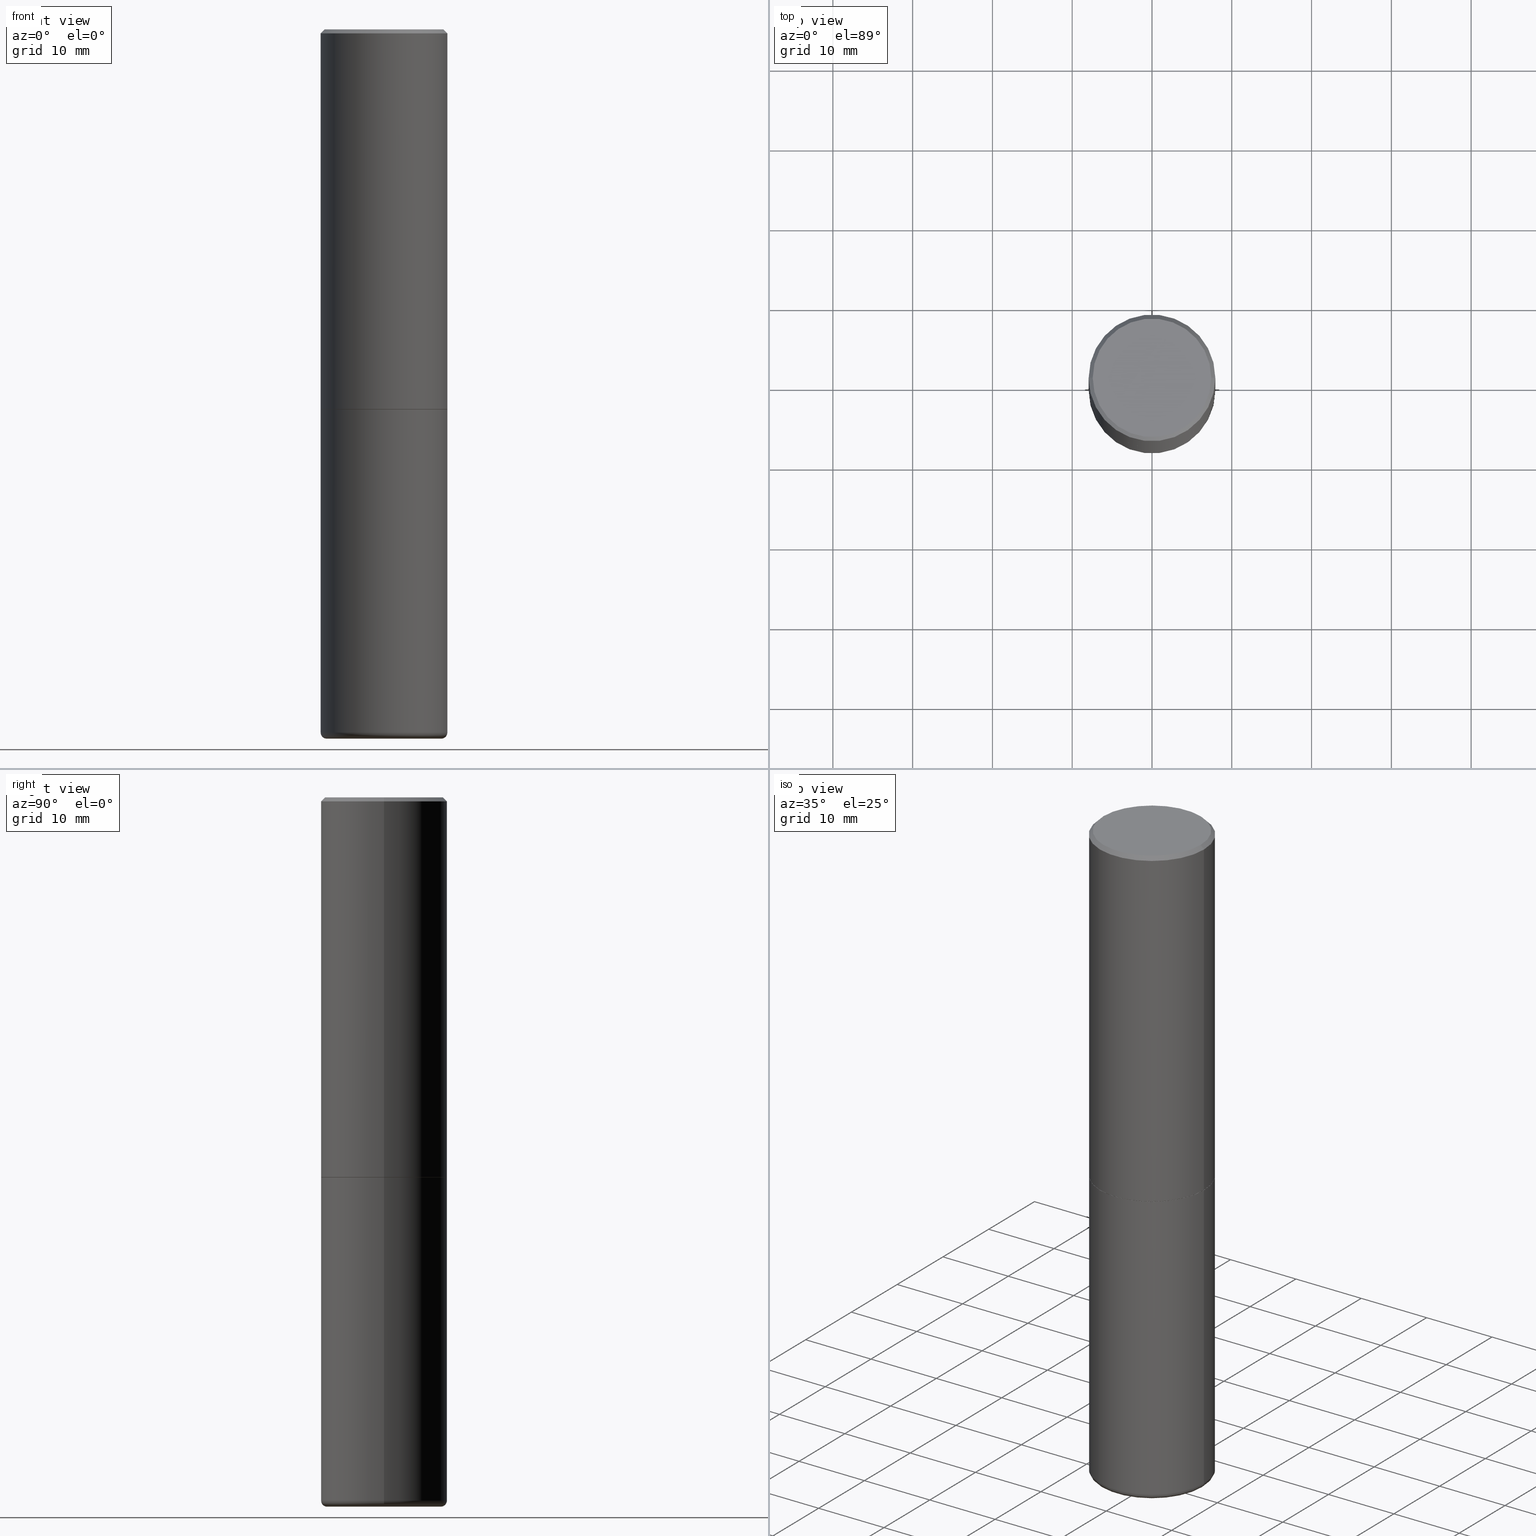
[diagram: canonical four-view strip — front | top / right | iso, engineering-drawing reading convention]
A machine part, canonical four-view strip (front | top / right | iso — engineering-drawing reading convention). The complete STEP part file that produces these views, byte-faithful:
ISO-10303-21;
HEADER;
FILE_DESCRIPTION (( 'STEP AP203' ),
    '1' );
FILE_NAME ('35118.STEP',
    '2022-07-29T12:17:37',
    ( '' ),
    ( '' ),
    'SwSTEP 2.0',
    'SolidWorks 2022',
    '' );
FILE_SCHEMA (( 'CONFIG_CONTROL_DESIGN' ));
ENDSEC;

DATA;
#1 = EDGE_LOOP ( 'NONE', ( #116, #70, #228, #4 ) ) ;
#2 = VERTEX_POINT ( 'NONE', #466 ) ;
#3 = CC_DESIGN_PERSON_AND_ORGANIZATION_ASSIGNMENT ( #87, #472, ( #120 ) ) ;
#4 = ORIENTED_EDGE ( 'NONE', *, *, #354, .F. ) ;
#5 = ORIENTED_EDGE ( 'NONE', *, *, #449, .T. ) ;
#6 = CONICAL_SURFACE ( 'NONE', #390, 0.2622382039350492078, 1.535889741755008808 ) ;
#7 = ORIENTED_EDGE ( 'NONE', *, *, #161, .F. ) ;
#8 = ORIENTED_EDGE ( 'NONE', *, *, #37, .T. ) ;
#9 = EDGE_CURVE ( 'NONE', #284, #77, #360, .T. ) ;
#10 = PERSON_AND_ORGANIZATION ( #435, #300 ) ;
#11 = CALENDAR_DATE ( 2022, 29, 7 ) ;
#12 = DIRECTION ( 'NONE',  ( -2.445468806185136597E-29, 3.491481338843145583E-15, 1.000000000000000000 ) ) ;
#13 = VERTEX_POINT ( 'NONE', #18 ) ;
#14 = LINE ( 'NONE', #90, #36 ) ;
#15 = DIRECTION ( 'NONE',  ( -2.445468806185136877E-29, 3.491481338843145188E-15, 1.000000000000000000 ) ) ;
#16 = ADVANCED_FACE ( 'NONE', ( #288 ), #46, .T. ) ;
#17 = DATE_AND_TIME ( #11, #190 ) ;
#18 = CARTESIAN_POINT ( 'NONE',  ( 0.3124999999999994449, -2.213735251080463362E-15, -0.02000000000000014960 ) ) ;
#19 = FACE_OUTER_BOUND ( 'NONE', #183, .T. ) ;
#20 = CARTESIAN_POINT ( 'NONE',  ( -0.2924999999999993716, 2.077431396611659850E-15, 4.268512490086005323E-18 ) ) ;
#21 = CARTESIAN_POINT ( 'NONE',  ( 4.585254011597131119E-29, -6.546527510330898707E-15, -1.875000000000000000 ) ) ;
#22 = FACE_OUTER_BOUND ( 'NONE', #1, .T. ) ;
#23 = MANIFOLD_SOLID_BREP ( 'Body-Move/Copy2[1]', #315 ) ;
#24 = VECTOR ( 'NONE', #153, 39.37007874015748143 ) ;
#25 = CARTESIAN_POINT ( 'NONE',  ( 2.182175836777002129E-15, 0.3124999999999931721, -1.875000000000000888 ) ) ;
#26 = SECURITY_CLASSIFICATION ( '', '', #242 ) ;
#27 = VECTOR ( 'NONE', #290, 39.37007874015748143 ) ;
#28 = DIRECTION ( 'NONE',  ( 2.445468806185136597E-29, -3.491481338843145583E-15, -1.000000000000000000 ) ) ;
#29 = ADVANCED_FACE ( 'NONE', ( #51 ), #476, .T. ) ;
#30 =( LENGTH_UNIT ( ) NAMED_UNIT ( * ) SI_UNIT ( $, .METRE. ) );
#31 = DIRECTION ( 'NONE',  ( -2.445468806185136597E-29, 3.491481338843145583E-15, 1.000000000000000000 ) ) ;
#32 = DIRECTION ( 'NONE',  ( 1.000000000000000000, -6.982962677686266711E-15, 4.876067333457700127E-29 ) ) ;
#33 = EDGE_LOOP ( 'NONE', ( #34, #380, #353, #107 ) ) ;
#34 = ORIENTED_EDGE ( 'NONE', *, *, #203, .T. ) ;
#35 = CLOSED_SHELL ( 'NONE', ( #95, #16, #485, #364, #463, #480, #259, #56 ) ) ;
#36 = VECTOR ( 'NONE', #412, 39.37007874015748143 ) ;
#37 = EDGE_CURVE ( 'NONE', #262, #223, #350, .T. ) ;
#38 = EDGE_LOOP ( 'NONE', ( #301, #488, #491, #69 ) ) ;
#39 = CARTESIAN_POINT ( 'NONE',  ( 0.3124999999999996114, -2.182175836776955586E-15, 1.523805242436227833E-29 ) ) ;
#40 = ORIENTED_EDGE ( 'NONE', *, *, #161, .T. ) ;
#41 = VERTEX_POINT ( 'NONE', #94 ) ;
#42 = AXIS2_PLACEMENT_3D ( 'NONE', #25, #333, #133 ) ;
#43 = EDGE_CURVE ( 'NONE', #262, #260, #89, .T. ) ;
#44 = EDGE_LOOP ( 'NONE', ( #306, #181, #111 ) ) ;
#45 = CARTESIAN_POINT ( 'NONE',  ( 0.2622382039350492078, -1.401865996506585776E-14, -3.499825462644184704 ) ) ;
#46 = CYLINDRICAL_SURFACE ( 'NONE', #437, 0.3124999999999996114 ) ;
#47 = DESIGN_CONTEXT ( 'detailed design', #314, 'design' ) ;
#48 = CALENDAR_DATE ( 2022, 29, 7 ) ;
#49 = DIRECTION ( 'NONE',  ( -2.445468806185136597E-29, 3.491481338843145583E-15, 1.000000000000000000 ) ) ;
#50 = CARTESIAN_POINT ( 'NONE',  ( 0.2622382039350492078, -1.401865996506585776E-14, -3.499825462644184704 ) ) ;
#51 = FACE_OUTER_BOUND ( 'NONE', #269, .T. ) ;
#52 = DIRECTION ( 'NONE',  ( -2.445468806185136877E-29, 3.491481338843145188E-15, 1.000000000000000000 ) ) ;
#53 = SHAPE_DEFINITION_REPRESENTATION ( #96, #134 ) ;
#54 = DIRECTION ( 'NONE',  ( -2.445468806185136597E-29, 3.491481338843145583E-15, 1.000000000000000000 ) ) ;
#55 = CARTESIAN_POINT ( 'NONE',  ( -1.043851414335219820E-46, 1.490343170380447200E-32, 4.268512490100411279E-18 ) ) ;
#56 = ADVANCED_FACE ( 'NONE', ( #317 ), #248, .F. ) ;
#57 = CONICAL_SURFACE ( 'NONE', #154, 0.3124999999999994449, 0.7853981633974468357 ) ;
#58 = CARTESIAN_POINT ( 'NONE',  ( 4.890937612370309067E-31, -6.982962677686343378E-17, -0.02000000000000014960 ) ) ;
#59 = DIRECTION ( 'NONE',  ( 0.7071067811865464625, -7.319954787623252890E-15, -0.7071067811865485719 ) ) ;
#60 = AXIS2_PLACEMENT_3D ( 'NONE', #93, #54, #209 ) ;
#61 = CARTESIAN_POINT ( 'NONE',  ( 8.536319468982178689E-29, -1.218760184262940823E-14, -3.490667902772638609 ) ) ;
#62 = EDGE_CURVE ( 'NONE', #406, #229, #159, .T. ) ;
#63 = DIRECTION ( 'NONE',  ( 1.000000000000000000, -6.982962677686269077E-15, 4.883557194083113462E-29 ) ) ;
#64 = LINE ( 'NONE', #218, #464 ) ;
#65 =( GEOMETRIC_REPRESENTATION_CONTEXT ( 3 ) GLOBAL_UNCERTAINTY_ASSIGNED_CONTEXT ( ( #434 ) ) GLOBAL_UNIT_ASSIGNED_CONTEXT ( ( #138, #273, #195 ) ) REPRESENTATION_CONTEXT ( 'NONE', 'WORKASPACE' ) );
#66 = VECTOR ( 'NONE', #85, 39.37007874015748143 ) ;
#67 = PLANE ( 'NONE',  #42 ) ;
#68 = ORIENTED_EDGE ( 'NONE', *, *, #9, .T. ) ;
#69 = ORIENTED_EDGE ( 'NONE', *, *, #108, .F. ) ;
#70 = ORIENTED_EDGE ( 'NONE', *, *, #419, .T. ) ;
#71 = CIRCLE ( 'NONE', #199, 0.02999999999999947500 ) ;
#72 = ORIENTED_EDGE ( 'NONE', *, *, #388, .F. ) ;
#73 = CIRCLE ( 'NONE', #148, 0.3124999999999997224 ) ;
#74 = ORIENTED_EDGE ( 'NONE', *, *, #400, .T. ) ;
#75 = VERTEX_POINT ( 'NONE', #118 ) ;
#76 = EDGE_CURVE ( 'NONE', #425, #77, #456, .T. ) ;
#77 = VERTEX_POINT ( 'NONE', #325 ) ;
#78 = VECTOR ( 'NONE', #368, 39.37007874015747433 ) ;
#79 = APPROVAL_PERSON_ORGANIZATION ( #10, #172, #465 ) ;
#80 = CARTESIAN_POINT ( 'NONE',  ( 8.485779550941188194E-29, -1.211544423413304219E-14, -3.470001142308074993 ) ) ;
#81 = CALENDAR_DATE ( 2022, 29, 7 ) ;
#82 = DIRECTION ( 'NONE',  ( 1.000000000000000000, -6.982962677686265922E-15, 0.000000000000000000 ) ) ;
#83 = AXIS2_PLACEMENT_3D ( 'NONE', #55, #281, #251 ) ;
#84 = PERSON_AND_ORGANIZATION ( #435, #300 ) ;
#85 = DIRECTION ( 'NONE',  ( -2.445468806185136877E-29, 3.491481338843145188E-15, 1.000000000000000000 ) ) ;
#86 = PRODUCT_DEFINITION ( 'UNKNOWN', '', #120, #47 ) ;
#87 = PERSON_AND_ORGANIZATION ( #435, #300 ) ;
#88 = APPLICATION_CONTEXT ( 'configuration controlled 3d designs of mechanical parts and assemblies' ) ;
#89 = LINE ( 'NONE', #441, #396 ) ;
#90 = CARTESIAN_POINT ( 'NONE',  ( -0.3124999999999996114, 2.220446049250310320E-15, -1.537167215704655990E-29 ) ) ;
#91 = CIRCLE ( 'NONE', #252, 0.2924999999999993716 ) ;
#92 = APPROVAL_STATUS ( 'not_yet_approved' ) ;
#93 = CARTESIAN_POINT ( 'NONE',  ( 0.000000000000000000, 0.000000000000000000, 0.000000000000000000 ) ) ;
#94 = CARTESIAN_POINT ( 'NONE',  ( -0.3124999999999997224, -7.110539822981658946E-15, -1.874999999999999778 ) ) ;
#95 = ADVANCED_FACE ( 'NONE', ( #410 ), #394, .T. ) ;
#96 = PRODUCT_DEFINITION_SHAPE ( 'NONE', 'NONE',  #86 ) ;
#97 = DIRECTION ( 'NONE',  ( -2.445468806185136597E-29, 3.491481338843145583E-15, 1.000000000000000000 ) ) ;
#98 = AXIS2_PLACEMENT_3D ( 'NONE', #233, #160, #358 ) ;
#99 = DIRECTION ( 'NONE',  ( -2.445468806185136597E-29, 3.491481338843145583E-15, 1.000000000000000000 ) ) ;
#100 = VERTEX_POINT ( 'NONE', #196 ) ;
#101 = EDGE_CURVE ( 'NONE', #406, #100, #454, .T. ) ;
#102 = DIRECTION ( 'NONE',  ( 1.000000000000000000, -6.982962677686266711E-15, 0.000000000000000000 ) ) ;
#103 = CARTESIAN_POINT ( 'NONE',  ( 0.3114999999999997216, -8.721720384430167884E-15, -1.875000000000000000 ) ) ;
#104 = CIRCLE ( 'NONE', #139, 0.3124999999999994449 ) ;
#105 = ORIENTED_EDGE ( 'NONE', *, *, #101, .F. ) ;
#106 = DIRECTION ( 'NONE',  ( -2.445468806185136597E-29, 3.491481338843145583E-15, 1.000000000000000000 ) ) ;
#107 = ORIENTED_EDGE ( 'NONE', *, *, #449, .F. ) ;
#108 = EDGE_CURVE ( 'NONE', #77, #425, #73, .T. ) ;
#109 = AXIS2_PLACEMENT_3D ( 'NONE', #336, #99, #481 ) ;
#110 = ORIENTED_EDGE ( 'NONE', *, *, #471, .F. ) ;
#111 = ORIENTED_EDGE ( 'NONE', *, *, #37, .F. ) ;
#112 = CONICAL_SURFACE ( 'NONE', #308, 0.3124999999999994449, 0.7853981633974468357 ) ;
#113 = CARTESIAN_POINT ( 'NONE',  ( -0.2822382039350491700, -1.005487990761673507E-14, -3.499999999999999112 ) ) ;
#114 = ADVANCED_FACE ( 'NONE', ( #132 ), #484, .F. ) ;
#115 = ORIENTED_EDGE ( 'NONE', *, *, #101, .T. ) ;
#116 = ORIENTED_EDGE ( 'NONE', *, *, #297, .F. ) ;
#117 = DATE_AND_TIME ( #48, #130 ) ;
#118 = CARTESIAN_POINT ( 'NONE',  ( -0.3124999999999994449, -7.110539822981660524E-15, -3.470001142308074993 ) ) ;
#119 = TOROIDAL_SURFACE ( 'NONE', #374, 0.2825000000000002509, 0.02999999999999949929 ) ;
#120 = PRODUCT_DEFINITION_FORMATION_WITH_SPECIFIED_SOURCE ( 'ANY', '', #393, .NOT_KNOWN. ) ;
#121 = DIRECTION ( 'NONE',  ( 1.000000000000000000, 0.000000000000000000, 0.000000000000000000 ) ) ;
#122 = DIRECTION ( 'NONE',  ( 1.000000000000000000, -6.982962677686266711E-15, 0.000000000000000000 ) ) ;
#123 = ORIENTED_EDGE ( 'NONE', *, *, #184, .F. ) ;
#124 = EDGE_CURVE ( 'NONE', #2, #41, #367, .T. ) ;
#125 = PERSON_AND_ORGANIZATION ( #435, #300 ) ;
#126 = CARTESIAN_POINT ( 'NONE',  ( 0.000000000000000000, 0.000000000000000000, 0.000000000000000000 ) ) ;
#127 = PERSON_AND_ORGANIZATION ( #435, #300 ) ;
#128 = CIRCLE ( 'NONE', #417, 0.3124999999999994449 ) ;
#129 = CARTESIAN_POINT ( 'NONE',  ( 0.3124999999999994449, -1.429762007090999581E-14, -3.470001142308074993 ) ) ;
#130 = LOCAL_TIME ( 8, 17, 37.00000000000000000, #287 ) ;
#131 = CC_DESIGN_PERSON_AND_ORGANIZATION_ASSIGNMENT ( #125, #283, ( #120 ) ) ;
#132 = FACE_OUTER_BOUND ( 'NONE', #272, .T. ) ;
#133 = DIRECTION ( 'NONE',  ( -1.000000000000000000, 6.982962677686265922E-15, -4.876176775795935793E-29 ) ) ;
#134 = ADVANCED_BREP_SHAPE_REPRESENTATION ( '35118', ( #23, #339, #474 ), #65 ) ;
#135 = AXIS2_PLACEMENT_3D ( 'NONE', #58, #170, #379 ) ;
#136 = CARTESIAN_POINT ( 'NONE',  ( 4.890937612370309067E-31, -6.982962677686343378E-17, -0.02000000000000014960 ) ) ;
#137 = EDGE_CURVE ( 'NONE', #223, #426, #298, .T. ) ;
#138 =( CONVERSION_BASED_UNIT ( 'INCH', #212 ) LENGTH_UNIT ( ) NAMED_UNIT ( #270 ) );
#139 = AXIS2_PLACEMENT_3D ( 'NONE', #320, #467, #157 ) ;
#140 = CC_DESIGN_PERSON_AND_ORGANIZATION_ASSIGNMENT ( #404, #365, ( #26 ) ) ;
#141 = VERTEX_POINT ( 'NONE', #103 ) ;
#142 = ORIENTED_EDGE ( 'NONE', *, *, #297, .T. ) ;
#143 = CARTESIAN_POINT ( 'NONE',  ( 8.558713995988817956E-29, -1.221957529203025001E-14, -3.499825462644184704 ) ) ;
#144 = EDGE_LOOP ( 'NONE', ( #461, #189, #146, #376 ) ) ;
#145 = PRODUCT_RELATED_PRODUCT_CATEGORY ( 'detail', '', ( #393 ) ) ;
#146 = ORIENTED_EDGE ( 'NONE', *, *, #234, .F. ) ;
#147 = ORIENTED_EDGE ( 'NONE', *, *, #275, .T. ) ;
#148 = AXIS2_PLACEMENT_3D ( 'NONE', #201, #162, #366 ) ;
#149 = PERSON_AND_ORGANIZATION_ROLE ( 'design_owner' ) ;
#150 = DIRECTION ( 'NONE',  ( 0.9999619230641716427, -6.890705306874701477E-15, -0.008726535498333042040 ) ) ;
#151 = PERSON_AND_ORGANIZATION ( #435, #300 ) ;
#152 = DIRECTION ( 'NONE',  ( -2.445468806185136597E-29, 3.491481338843145583E-15, 1.000000000000000000 ) ) ;
#153 = DIRECTION ( 'NONE',  ( 0.7071067811864267805, -2.468850131080992517E-15, 0.7071067811866682540 ) ) ;
#154 = AXIS2_PLACEMENT_3D ( 'NONE', #332, #295, #478 ) ;
#155 = APPROVAL_PERSON_ORGANIZATION ( #230, #424, #158 ) ;
#156 = APPLICATION_PROTOCOL_DEFINITION ( 'international standard', 'config_control_design', 1994, #314 ) ;
#157 = DIRECTION ( 'NONE',  ( 1.000000000000000000, -6.982962677686269077E-15, 0.000000000000000000 ) ) ;
#158 = APPROVAL_ROLE ( '' ) ;
#159 = LINE ( 'NONE', #415, #167 ) ;
#160 = DIRECTION ( 'NONE',  ( 2.445468806185136597E-29, -3.491481338843145583E-15, -1.000000000000000000 ) ) ;
#161 = EDGE_CURVE ( 'NONE', #229, #13, #414, .T. ) ;
#162 = DIRECTION ( 'NONE',  ( -2.445468806185136597E-29, 3.491481338843145583E-15, 1.000000000000000000 ) ) ;
#163 = LINE ( 'NONE', #442, #24 ) ;
#164 = CIRCLE ( 'NONE', #299, 0.2822382039350491700 ) ;
#165 = DIRECTION ( 'NONE',  ( -0.9999619230641716427, 6.952228252019315186E-15, -0.008726535498333042040 ) ) ;
#166 = AXIS2_PLACEMENT_3D ( 'NONE', #21, #49, #82 ) ;
#167 = VECTOR ( 'NONE', #397, 39.37007874015748143 ) ;
#168 = DIRECTION ( 'NONE',  ( -1.000000000000000000, 6.982962677686269866E-15, 0.000000000000000000 ) ) ;
#169 = CIRCLE ( 'NONE', #457, 0.02999999999999947500 ) ;
#170 = DIRECTION ( 'NONE',  ( -2.445468806185136597E-29, 3.491481338843145583E-15, 1.000000000000000000 ) ) ;
#171 = ORIENTED_EDGE ( 'NONE', *, *, #372, .T. ) ;
#172 = APPROVAL ( #468, 'UNSPECIFIED' ) ;
#173 = AXIS2_PLACEMENT_3D ( 'NONE', #479, #28, #377 ) ;
#174 = CARTESIAN_POINT ( 'NONE',  ( 8.485779550941188194E-29, -1.211544423413304219E-14, -3.470001142308074993 ) ) ;
#175 = DIRECTION ( 'NONE',  ( 1.000000000000000000, -6.982962677686269866E-15, 0.000000000000000000 ) ) ;
#176 = VECTOR ( 'NONE', #165, 39.37007874015748143 ) ;
#177 = EDGE_CURVE ( 'NONE', #426, #75, #169, .T. ) ;
#178 = CARTESIAN_POINT ( 'NONE',  ( 4.585254011597131119E-29, -6.546527510330898707E-15, -1.875000000000000000 ) ) ;
#179 = ORIENTED_EDGE ( 'NONE', *, *, #444, .T. ) ;
#180 = CIRCLE ( 'NONE', #296, 0.3114999999999997216 ) ;
#181 = ORIENTED_EDGE ( 'NONE', *, *, #282, .T. ) ;
#182 = CARTESIAN_POINT ( 'NONE',  ( 4.585254011597131119E-29, -6.546527510330898707E-15, -1.875000000000000000 ) ) ;
#183 = EDGE_LOOP ( 'NONE', ( #221, #8, #351, #187 ) ) ;
#184 = EDGE_CURVE ( 'NONE', #100, #13, #64, .T. ) ;
#185 = DIRECTION ( 'NONE',  ( 1.000000000000000000, -6.982962677686264344E-15, 0.000000000000000000 ) ) ;
#186 = ORIENTED_EDGE ( 'NONE', *, *, #243, .F. ) ;
#187 = ORIENTED_EDGE ( 'NONE', *, *, #203, .F. ) ;
#188 = EDGE_LOOP ( 'NONE', ( #123, #105, #303, #40 ) ) ;
#189 = ORIENTED_EDGE ( 'NONE', *, *, #388, .T. ) ;
#190 = LOCAL_TIME ( 8, 17, 37.00000000000000000, #235 ) ;
#191 = FACE_OUTER_BOUND ( 'NONE', #38, .T. ) ;
#192 = CARTESIAN_POINT ( 'NONE',  ( -0.3124999999999996114, 2.220446049250310320E-15, -1.537167215704655990E-29 ) ) ;
#193 = DIRECTION ( 'NONE',  ( -2.445468806185136597E-29, 3.491481338843145583E-15, 1.000000000000000000 ) ) ;
#194 = FACE_OUTER_BOUND ( 'NONE', #278, .T. ) ;
#195 =( NAMED_UNIT ( * ) SI_UNIT ( $, .STERADIAN. ) SOLID_ANGLE_UNIT ( ) );
#196 = CARTESIAN_POINT ( 'NONE',  ( 0.2924999999999993716, -2.110215457714315987E-15, 4.268512490114932791E-18 ) ) ;
#197 = CARTESIAN_POINT ( 'NONE',  ( 0.2825000000000002509, -1.408813119057941538E-14, -3.470001142308074993 ) ) ;
#198 = DIRECTION ( 'NONE',  ( 1.000000000000000000, -6.982962677686269077E-15, 4.883557194083113462E-29 ) ) ;
#199 = AXIS2_PLACEMENT_3D ( 'NONE', #197, #439, #322 ) ;
#200 = PERSON_AND_ORGANIZATION_ROLE ( 'creator' ) ;
#201 = CARTESIAN_POINT ( 'NONE',  ( 4.582808542790944955E-29, -6.543036028992054122E-15, -1.873999999999999666 ) ) ;
#202 = DIRECTION ( 'NONE',  ( -2.445468806185136597E-29, 3.491481338843145583E-15, 1.000000000000000000 ) ) ;
#203 = EDGE_CURVE ( 'NONE', #260, #426, #460, .T. ) ;
#204 = LINE ( 'NONE', #50, #78 ) ;
#205 = DATE_AND_TIME ( #409, #384 ) ;
#206 = ORIENTED_EDGE ( 'NONE', *, *, #137, .F. ) ;
#207 = CARTESIAN_POINT ( 'NONE',  ( 2.042516583223228201E-15, 0.2924999999999993716, -1.019124035366567634E-15 ) ) ;
#208 = CYLINDRICAL_SURFACE ( 'NONE', #421, 0.3124999999999996114 ) ;
#209 = DIRECTION ( 'NONE',  ( 1.000000000000000000, -6.982962677686266711E-15, 4.876176775795935232E-29 ) ) ;
#210 = AXIS2_PLACEMENT_3D ( 'NONE', #451, #97, #102 ) ;
#211 = CARTESIAN_POINT ( 'NONE',  ( -0.2825000000000002509, -1.010816100561075620E-14, -3.470001142308074993 ) ) ;
#212 = LENGTH_MEASURE_WITH_UNIT ( LENGTH_MEASURE( 0.02539999999999999897 ), #30 );
#213 = CARTESIAN_POINT ( 'NONE',  ( 8.559140821647976968E-29, -1.222018468595100619E-14, -3.499999999999999112 ) ) ;
#214 = ADVANCED_FACE ( 'NONE', ( #338 ), #224, .F. ) ;
#215 = DIRECTION ( 'NONE',  ( 2.445468806185136597E-29, -3.491481338843145583E-15, -1.000000000000000000 ) ) ;
#216 = DIRECTION ( 'NONE',  ( 7.105427357601001859E-15, 1.000000000000000000, -3.491481338843145583E-15 ) ) ;
#217 = VECTOR ( 'NONE', #371, 39.37007874015747433 ) ;
#218 = CARTESIAN_POINT ( 'NONE',  ( 0.3124999999999994449, -2.213735251080463362E-15, -0.02000000000000014960 ) ) ;
#219 = CC_DESIGN_PERSON_AND_ORGANIZATION_ASSIGNMENT ( #151, #149, ( #393 ) ) ;
#220 = DIRECTION ( 'NONE',  ( -2.445468806185136597E-29, 3.491481338843145583E-15, 1.000000000000000000 ) ) ;
#221 = ORIENTED_EDGE ( 'NONE', *, *, #43, .F. ) ;
#222 = DIRECTION ( 'NONE',  ( -2.438088387897960049E-29, 3.491481338843145188E-15, 1.000000000000000000 ) ) ;
#223 = VERTEX_POINT ( 'NONE', #452 ) ;
#224 = CONICAL_SURFACE ( 'NONE', #173, 0.2622382039350492078, 1.535889741755008808 ) ;
#225 = ORIENTED_EDGE ( 'NONE', *, *, #234, .T. ) ;
#226 = LINE ( 'NONE', #39, #66 ) ;
#227 = ADVANCED_FACE ( 'NONE', ( #422 ), #67, .F. ) ;
#228 = ORIENTED_EDGE ( 'NONE', *, *, #453, .T. ) ;
#229 = VERTEX_POINT ( 'NONE', #447 ) ;
#230 = PERSON_AND_ORGANIZATION ( #435, #300 ) ;
#231 = VECTOR ( 'NONE', #15, 39.37007874015748143 ) ;
#232 = CC_DESIGN_APPROVAL ( #294, ( #26 ) ) ;
#233 = CARTESIAN_POINT ( 'NONE',  ( 8.559140821647976968E-29, -1.222018468595100619E-14, -3.499999999999999112 ) ) ;
#234 = EDGE_CURVE ( 'NONE', #13, #229, #432, .T. ) ;
#235 = COORDINATED_UNIVERSAL_TIME_OFFSET ( 5, 0, .BEHIND. ) ;
#236 = ORIENTED_EDGE ( 'NONE', *, *, #76, .F. ) ;
#237 = DIRECTION ( 'NONE',  ( -2.445468806185136597E-29, 3.491481338843145583E-15, 1.000000000000000000 ) ) ;
#238 = AXIS2_PLACEMENT_3D ( 'NONE', #433, #12, #122 ) ;
#239 = COORDINATED_UNIVERSAL_TIME_OFFSET ( 5, 0, .BEHIND. ) ;
#240 = DIRECTION ( 'NONE',  ( 1.000000000000000000, -6.982962677686266711E-15, 4.876176775795935232E-29 ) ) ;
#241 = CYLINDRICAL_SURFACE ( 'NONE', #316, 0.3124999999999996114 ) ;
#242 = SECURITY_CLASSIFICATION_LEVEL ( 'unclassified' ) ;
#243 = EDGE_CURVE ( 'NONE', #284, #141, #363, .T. ) ;
#244 = CARTESIAN_POINT ( 'NONE',  ( 0.000000000000000000, 0.000000000000000000, 0.000000000000000000 ) ) ;
#245 = DIRECTION ( 'NONE',  ( 2.445468806185136597E-29, -3.491481338843145583E-15, -1.000000000000000000 ) ) ;
#246 = DIRECTION ( 'NONE',  ( 1.000000000000000000, -6.982962677686269866E-15, 0.000000000000000000 ) ) ;
#247 = COORDINATED_UNIVERSAL_TIME_OFFSET ( 5, 0, .BEHIND. ) ;
#248 = PLANE ( 'NONE',  #302 ) ;
#249 = ORIENTED_EDGE ( 'NONE', *, *, #372, .F. ) ;
#250 = CARTESIAN_POINT ( 'NONE',  ( -0.2622382039350492078, -1.038837570128832285E-14, -3.499825462644184704 ) ) ;
#251 = DIRECTION ( 'NONE',  ( 1.000000000000000000, -6.982962677686266711E-15, 4.876067333457700127E-29 ) ) ;
#252 = AXIS2_PLACEMENT_3D ( 'NONE', #486, #220, #32 ) ;
#253 = DIRECTION ( 'NONE',  ( -2.445468806185136597E-29, 3.491481338843145583E-15, 1.000000000000000000 ) ) ;
#254 = EDGE_CURVE ( 'NONE', #100, #406, #91, .T. ) ;
#255 = CARTESIAN_POINT ( 'NONE',  ( -0.2822382039350491700, -1.024932584165535243E-14, -3.499999999999999112 ) ) ;
#256 = DIRECTION ( 'NONE',  ( 1.000000000000000000, -6.982962677686265922E-15, 0.000000000000000000 ) ) ;
#257 = DIRECTION ( 'NONE',  ( 2.445468806185136597E-29, -3.491481338843145583E-15, -1.000000000000000000 ) ) ;
#258 = FACE_OUTER_BOUND ( 'NONE', #188, .T. ) ;
#259 = ADVANCED_FACE ( 'NONE', ( #487 ), #342, .F. ) ;
#260 = VERTEX_POINT ( 'NONE', #398 ) ;
#261 = AXIS2_PLACEMENT_3D ( 'NONE', #352, #106, #256 ) ;
#262 = VERTEX_POINT ( 'NONE', #45 ) ;
#263 = FACE_OUTER_BOUND ( 'NONE', #348, .T. ) ;
#264 = EDGE_LOOP ( 'NONE', ( #274, #423 ) ) ;
#265 = ORIENTED_EDGE ( 'NONE', *, *, #453, .F. ) ;
#266 = DIRECTION ( 'NONE',  ( -2.445468806185136597E-29, 3.491481338843145583E-15, 1.000000000000000000 ) ) ;
#267 = ADVANCED_FACE ( 'NONE', ( #194 ), #277, .T. ) ;
#268 = AXIS2_PLACEMENT_3D ( 'NONE', #143, #305, #185 ) ;
#269 = EDGE_LOOP ( 'NONE', ( #311, #142, #357, #265 ) ) ;
#270 = DIMENSIONAL_EXPONENTS ( 1.000000000000000000, 0.000000000000000000, 0.000000000000000000, 0.000000000000000000, 0.000000000000000000, 0.000000000000000000, 0.000000000000000000 ) ;
#271 = ORIENTED_EDGE ( 'NONE', *, *, #282, .F. ) ;
#272 = EDGE_LOOP ( 'NONE', ( #438, #329, #249, #206 ) ) ;
#273 =( NAMED_UNIT ( * ) PLANE_ANGLE_UNIT ( ) SI_UNIT ( $, .RADIAN. ) );
#274 = ORIENTED_EDGE ( 'NONE', *, *, #124, .T. ) ;
#275 = EDGE_CURVE ( 'NONE', #425, #13, #473, .T. ) ;
#276 = CARTESIAN_POINT ( 'NONE',  ( 0.000000000000000000, 0.000000000000000000, 0.000000000000000000 ) ) ;
#277 = TOROIDAL_SURFACE ( 'NONE', #330, 0.2825000000000002509, 0.02999999999999949929 ) ;
#278 = EDGE_LOOP ( 'NONE', ( #335, #171, #5, #430 ) ) ;
#279 = CC_DESIGN_APPROVAL ( #424, ( #86 ) ) ;
#280 = MECHANICAL_CONTEXT ( 'NONE', #88, 'mechanical' ) ;
#281 = DIRECTION ( 'NONE',  ( -2.445468806185136597E-29, 3.491481338843145583E-15, 1.000000000000000000 ) ) ;
#282 = EDGE_CURVE ( 'NONE', #349, #223, #361, .T. ) ;
#283 = PERSON_AND_ORGANIZATION_ROLE ( 'creator' ) ;
#284 = VERTEX_POINT ( 'NONE', #331 ) ;
#285 = CARTESIAN_POINT ( 'NONE',  ( 0.3124999999999997224, -8.725211865769010891E-15, -1.873999999999999666 ) ) ;
#286 = CARTESIAN_POINT ( 'NONE',  ( 8.558713995988817956E-29, -1.221957529203025001E-14, -3.499825462644184704 ) ) ;
#287 = COORDINATED_UNIVERSAL_TIME_OFFSET ( 5, 0, .BEHIND. ) ;
#288 = FACE_OUTER_BOUND ( 'NONE', #144, .T. ) ;
#289 = AXIS2_PLACEMENT_3D ( 'NONE', #178, #31, #341 ) ;
#290 = DIRECTION ( 'NONE',  ( -0.7071067811864267805, 7.493145998869918709E-15, 0.7071067811866682540 ) ) ;
#291 = CARTESIAN_POINT ( 'NONE',  ( 8.559140821647976968E-29, -1.222018468595100619E-14, -3.499999999999999112 ) ) ;
#292 = AXIS2_PLACEMENT_3D ( 'NONE', #293, #257, #168 ) ;
#293 = CARTESIAN_POINT ( 'NONE',  ( 8.559140821647976968E-29, -1.222018468595100619E-14, -3.499999999999999112 ) ) ;
#294 = APPROVAL ( #92, 'UNSPECIFIED' ) ;
#295 = DIRECTION ( 'NONE',  ( 2.445468806185136597E-29, -3.491481338843145583E-15, -1.000000000000000000 ) ) ;
#296 = AXIS2_PLACEMENT_3D ( 'NONE', #411, #237, #318 ) ;
#297 = EDGE_CURVE ( 'NONE', #75, #41, #14, .T. ) ;
#298 = LINE ( 'NONE', #255, #176 ) ;
#299 = AXIS2_PLACEMENT_3D ( 'NONE', #291, #253, #246 ) ;
#300 = ORGANIZATION ( 'UNSPECIFIED', 'UNSPECIFIED', '' ) ;
#301 = ORIENTED_EDGE ( 'NONE', *, *, #9, .F. ) ;
#302 = AXIS2_PLACEMENT_3D ( 'NONE', #207, #402, #313 ) ;
#303 = ORIENTED_EDGE ( 'NONE', *, *, #62, .T. ) ;
#304 = EDGE_CURVE ( 'NONE', #141, #425, #163, .T. ) ;
#305 = DIRECTION ( 'NONE',  ( -2.445468806185136597E-29, 3.491481338843145583E-15, 1.000000000000000000 ) ) ;
#306 = ORIENTED_EDGE ( 'NONE', *, *, #400, .F. ) ;
#307 = DIRECTION ( 'NONE',  ( 1.000000000000000000, -6.982962677686269077E-15, 0.000000000000000000 ) ) ;
#308 = AXIS2_PLACEMENT_3D ( 'NONE', #344, #215, #489 ) ;
#309 = EDGE_LOOP ( 'NONE', ( #271, #74, #110 ) ) ;
#310 = CC_DESIGN_PERSON_AND_ORGANIZATION_ASSIGNMENT ( #84, #200, ( #86 ) ) ;
#311 = ORIENTED_EDGE ( 'NONE', *, *, #337, .T. ) ;
#312 = DATE_TIME_ROLE ( 'creation_date' ) ;
#313 = DIRECTION ( 'NONE',  ( -1.000000000000000000, 6.982962677686265922E-15, -4.876176775795935793E-29 ) ) ;
#314 = APPLICATION_CONTEXT ( 'configuration controlled 3d designs of mechanical parts and assemblies' ) ;
#315 = CLOSED_SHELL ( 'NONE', ( #114, #413, #29, #214, #347, #227, #324, #267, #334 ) ) ;
#316 = AXIS2_PLACEMENT_3D ( 'NONE', #477, #326, #403 ) ;
#317 = FACE_OUTER_BOUND ( 'NONE', #429, .T. ) ;
#318 = DIRECTION ( 'NONE',  ( 1.000000000000000000, -6.982962677686265922E-15, 0.000000000000000000 ) ) ;
#319 = CC_DESIGN_APPROVAL ( #172, ( #120 ) ) ;
#320 = CARTESIAN_POINT ( 'NONE',  ( 8.485779550941188194E-29, -1.211544423413304219E-14, -3.470001142308074993 ) ) ;
#321 = DATE_AND_TIME ( #81, #490 ) ;
#322 = DIRECTION ( 'NONE',  ( 1.000000000000000000, -6.982962677686260400E-15, 0.000000000000000000 ) ) ;
#323 = FACE_OUTER_BOUND ( 'NONE', #44, .T. ) ;
#324 = ADVANCED_FACE ( 'NONE', ( #22 ), #241, .T. ) ;
#325 = CARTESIAN_POINT ( 'NONE',  ( -0.3124999999999997224, -1.085986778634146418E-15, -1.873999999999999666 ) ) ;
#326 = DIRECTION ( 'NONE',  ( -2.445468806185136597E-29, 3.491481338843145583E-15, 1.000000000000000000 ) ) ;
#327 = FACE_OUTER_BOUND ( 'NONE', #33, .T. ) ;
#328 = COORDINATED_UNIVERSAL_TIME_OFFSET ( 5, 0, .BEHIND. ) ;
#329 = ORIENTED_EDGE ( 'NONE', *, *, #43, .T. ) ;
#330 = AXIS2_PLACEMENT_3D ( 'NONE', #431, #470, #198 ) ;
#331 = CARTESIAN_POINT ( 'NONE',  ( -0.3114999999999997216, -4.327888434089965810E-15, -1.875000000000000000 ) ) ;
#332 = CARTESIAN_POINT ( 'NONE',  ( 4.890937612370309067E-31, -6.982962677686343378E-17, -0.02000000000000014960 ) ) ;
#333 = DIRECTION ( 'NONE',  ( 2.438088387897960049E-29, -3.491481338843145188E-15, -1.000000000000000000 ) ) ;
#334 = ADVANCED_FACE ( 'NONE', ( #19 ), #405, .F. ) ;
#335 = ORIENTED_EDGE ( 'NONE', *, *, #177, .F. ) ;
#336 = CARTESIAN_POINT ( 'NONE',  ( 4.585254011597130558E-29, -6.546527510330897918E-15, -1.874999999999999778 ) ) ;
#337 = EDGE_CURVE ( 'NONE', #389, #75, #104, .T. ) ;
#338 = FACE_OUTER_BOUND ( 'NONE', #309, .T. ) ;
#339 = MANIFOLD_SOLID_BREP ( 'Body-Move/Copy2[2]', #35 ) ;
#340 = DIRECTION ( 'NONE',  ( -2.445468806185136597E-29, 3.491481338843145583E-15, 1.000000000000000000 ) ) ;
#341 = DIRECTION ( 'NONE',  ( 1.000000000000000000, -6.982962677686265922E-15, 0.000000000000000000 ) ) ;
#342 = PLANE ( 'NONE',  #427 ) ;
#343 = ORIENTED_EDGE ( 'NONE', *, *, #444, .F. ) ;
#344 = CARTESIAN_POINT ( 'NONE',  ( 4.890937612370309067E-31, -6.982962677686343378E-17, -0.02000000000000014960 ) ) ;
#345 = VECTOR ( 'NONE', #52, 39.37007874015748143 ) ;
#346 = CC_DESIGN_SECURITY_CLASSIFICATION ( #26, ( #120 ) ) ;
#347 = ADVANCED_FACE ( 'NONE', ( #323 ), #6, .F. ) ;
#348 = EDGE_LOOP ( 'NONE', ( #382, #448, #225, #455 ) ) ;
#349 = VERTEX_POINT ( 'NONE', #61 ) ;
#350 = CIRCLE ( 'NONE', #469, 0.2622382039350492078 ) ;
#351 = ORIENTED_EDGE ( 'NONE', *, *, #137, .T. ) ;
#352 = CARTESIAN_POINT ( 'NONE',  ( 4.585254011597131119E-29, -6.546527510330898707E-15, -1.875000000000000000 ) ) ;
#353 = ORIENTED_EDGE ( 'NONE', *, *, #337, .F. ) ;
#354 = EDGE_CURVE ( 'NONE', #41, #2, #383, .T. ) ;
#355 = CONICAL_SURFACE ( 'NONE', #261, 0.3114999999999997216, 0.7853981633972775267 ) ;
#356 = ORIENTED_EDGE ( 'NONE', *, *, #304, .F. ) ;
#357 = ORIENTED_EDGE ( 'NONE', *, *, #124, .F. ) ;
#358 = DIRECTION ( 'NONE',  ( -1.000000000000000000, 6.982962677686269866E-15, 0.000000000000000000 ) ) ;
#359 = APPROVAL_DATE_TIME ( #321, #424 ) ;
#360 = LINE ( 'NONE', #446, #27 ) ;
#361 = LINE ( 'NONE', #250, #217 ) ;
#362 = DIRECTION ( 'NONE',  ( 0.000000000000000000, 0.000000000000000000, 1.000000000000000000 ) ) ;
#363 = CIRCLE ( 'NONE', #289, 0.3114999999999997216 ) ;
#364 = ADVANCED_FACE ( 'NONE', ( #258 ), #57, .T. ) ;
#365 = PERSON_AND_ORGANIZATION_ROLE ( 'classification_officer' ) ;
#366 = DIRECTION ( 'NONE',  ( 1.000000000000000000, -6.982962677686266711E-15, 0.000000000000000000 ) ) ;
#367 = CIRCLE ( 'NONE', #109, 0.3124999999999997224 ) ;
#368 = DIRECTION ( 'NONE',  ( 0.9993908270190957621, -6.978169709227547010E-15, -0.03489949670250219738 ) ) ;
#369 = APPROVAL_DATE_TIME ( #205, #294 ) ;
#370 = CARTESIAN_POINT ( 'NONE',  ( 8.558713995988817956E-29, -1.221957529203025001E-14, -3.499825462644184704 ) ) ;
#371 = DIRECTION ( 'NONE',  ( -0.9993908270190957621, 6.856857904024552526E-15, -0.03489949670250219738 ) ) ;
#372 = EDGE_CURVE ( 'NONE', #426, #260, #164, .T. ) ;
#373 = DIRECTION ( 'NONE',  ( 1.000000000000000000, -6.982962677686264344E-15, 0.000000000000000000 ) ) ;
#374 = AXIS2_PLACEMENT_3D ( 'NONE', #80, #340, #63 ) ;
#375 = LOCAL_TIME ( 8, 17, 37.00000000000000000, #239 ) ;
#376 = ORIENTED_EDGE ( 'NONE', *, *, #275, .F. ) ;
#377 = DIRECTION ( 'NONE',  ( -1.000000000000000000, 6.982962677686264344E-15, 0.000000000000000000 ) ) ;
#378 = DIRECTION ( 'NONE',  ( -2.445468806185136597E-29, 3.491481338843145583E-15, 1.000000000000000000 ) ) ;
#379 = DIRECTION ( 'NONE',  ( 1.000000000000000000, -6.982962677686267499E-15, 0.000000000000000000 ) ) ;
#380 = ORIENTED_EDGE ( 'NONE', *, *, #177, .T. ) ;
#381 = CC_DESIGN_DATE_AND_TIME_ASSIGNMENT ( #117, #312, ( #86 ) ) ;
#382 = ORIENTED_EDGE ( 'NONE', *, *, #254, .F. ) ;
#383 = CIRCLE ( 'NONE', #210, 0.3124999999999997224 ) ;
#384 = LOCAL_TIME ( 8, 17, 37.00000000000000000, #247 ) ;
#385 = ORIENTED_EDGE ( 'NONE', *, *, #108, .T. ) ;
#386 = DIRECTION ( 'NONE',  ( 1.000000000000000000, -6.982962677686265922E-15, 4.876176775795935793E-29 ) ) ;
#387 = EDGE_LOOP ( 'NONE', ( #343, #186 ) ) ;
#388 = EDGE_CURVE ( 'NONE', #77, #229, #408, .T. ) ;
#389 = VERTEX_POINT ( 'NONE', #129 ) ;
#390 = AXIS2_PLACEMENT_3D ( 'NONE', #286, #245, #483 ) ;
#391 = APPROVAL_PERSON_ORGANIZATION ( #127, #294, #395 ) ;
#392 = CARTESIAN_POINT ( 'NONE',  ( 0.3124999999999996114, -2.182175836776955586E-15, 1.523805242436227833E-29 ) ) ;
#393 = PRODUCT ( '35118', '35118', '', ( #280 ) ) ;
#394 = CONICAL_SURFACE ( 'NONE', #166, 0.3114999999999997216, 0.7853981633972775267 ) ;
#395 = APPROVAL_ROLE ( '' ) ;
#396 = VECTOR ( 'NONE', #150, 39.37007874015748143 ) ;
#397 = DIRECTION ( 'NONE',  ( -0.7071067811865464625, 2.468850131082245622E-15, -0.7071067811865485719 ) ) ;
#398 = CARTESIAN_POINT ( 'NONE',  ( 0.2822382039350491700, -1.419104353024666152E-14, -3.499999999999999112 ) ) ;
#399 = AXIS2_PLACEMENT_3D ( 'NONE', #136, #418, #450 ) ;
#400 = EDGE_CURVE ( 'NONE', #349, #262, #204, .T. ) ;
#401 = DATE_AND_TIME ( #462, #375 ) ;
#402 = DIRECTION ( 'NONE',  ( 2.438088387897960049E-29, -3.491481338843145188E-15, -1.000000000000000000 ) ) ;
#403 = DIRECTION ( 'NONE',  ( 1.000000000000000000, -6.982962677686266711E-15, 4.876176775795935232E-29 ) ) ;
#404 = PERSON_AND_ORGANIZATION ( #435, #300 ) ;
#405 = CONICAL_SURFACE ( 'NONE', #98, 0.2822382039350491700, 1.562069680534965865 ) ;
#406 = VERTEX_POINT ( 'NONE', #20 ) ;
#407 = FACE_OUTER_BOUND ( 'NONE', #458, .T. ) ;
#408 = LINE ( 'NONE', #192, #345 ) ;
#409 = CALENDAR_DATE ( 2022, 29, 7 ) ;
#410 = FACE_OUTER_BOUND ( 'NONE', #459, .T. ) ;
#411 = CARTESIAN_POINT ( 'NONE',  ( 4.585254011597131119E-29, -6.546527510330898707E-15, -1.875000000000000000 ) ) ;
#412 = DIRECTION ( 'NONE',  ( -2.445468806185136877E-29, 3.491481338843145188E-15, 1.000000000000000000 ) ) ;
#413 = ADVANCED_FACE ( 'NONE', ( #327 ), #119, .T. ) ;
#414 = CIRCLE ( 'NONE', #399, 0.3124999999999994449 ) ;
#415 = CARTESIAN_POINT ( 'NONE',  ( -0.3124999999999994449, 2.112346210000091499E-15, -0.02000000000000014960 ) ) ;
#416 = DIRECTION ( 'NONE',  ( -1.000000000000000000, 7.105427357600985293E-15, 0.000000000000000000 ) ) ;
#417 = AXIS2_PLACEMENT_3D ( 'NONE', #174, #266, #307 ) ;
#418 = DIRECTION ( 'NONE',  ( -2.445468806185136597E-29, 3.491481338843145583E-15, 1.000000000000000000 ) ) ;
#419 = EDGE_CURVE ( 'NONE', #75, #389, #128, .T. ) ;
#420 = ORIENTED_EDGE ( 'NONE', *, *, #254, .T. ) ;
#421 = AXIS2_PLACEMENT_3D ( 'NONE', #244, #202, #492 ) ;
#422 = FACE_OUTER_BOUND ( 'NONE', #264, .T. ) ;
#423 = ORIENTED_EDGE ( 'NONE', *, *, #354, .T. ) ;
#424 = APPROVAL ( #436, 'UNSPECIFIED' ) ;
#425 = VERTEX_POINT ( 'NONE', #285 ) ;
#426 = VERTEX_POINT ( 'NONE', #113 ) ;
#427 = AXIS2_PLACEMENT_3D ( 'NONE', #182, #222, #386 ) ;
#428 = CC_DESIGN_DATE_AND_TIME_ASSIGNMENT ( #17, #443, ( #26 ) ) ;
#429 = EDGE_LOOP ( 'NONE', ( #115, #420 ) ) ;
#430 = ORIENTED_EDGE ( 'NONE', *, *, #419, .F. ) ;
#431 = CARTESIAN_POINT ( 'NONE',  ( 8.485779550941188194E-29, -1.211544423413304219E-14, -3.470001142308074993 ) ) ;
#432 = CIRCLE ( 'NONE', #135, 0.3124999999999994449 ) ;
#433 = CARTESIAN_POINT ( 'NONE',  ( 4.582808542790944955E-29, -6.543036028992054122E-15, -1.873999999999999666 ) ) ;
#434 = UNCERTAINTY_MEASURE_WITH_UNIT (LENGTH_MEASURE( 1.000000000000000082E-05 ), #138, 'distance_accuracy_value', 'NONE');
#435 = PERSON ( 'UNSPECIFIED', 'UNSPECIFIED', 'UNSPECIFIED', ('UNSPECIFIED'), ('UNSPECIFIED'), ('UNSPECIFIED') ) ;
#436 = APPROVAL_STATUS ( 'not_yet_approved' ) ;
#437 = AXIS2_PLACEMENT_3D ( 'NONE', #126, #193, #240 ) ;
#438 = ORIENTED_EDGE ( 'NONE', *, *, #471, .T. ) ;
#439 = DIRECTION ( 'NONE',  ( -6.982962677686266711E-15, -1.000000000000000000, 3.491481338843145583E-15 ) ) ;
#440 = APPLICATION_PROTOCOL_DEFINITION ( 'international standard', 'config_control_design', 1994, #88 ) ;
#441 = CARTESIAN_POINT ( 'NONE',  ( 0.2822382039350491700, -1.415647931894204539E-14, -3.499999999999999112 ) ) ;
#442 = CARTESIAN_POINT ( 'NONE',  ( 0.3114999999999997216, -8.721720384430167884E-15, -1.875000000000000000 ) ) ;
#443 = DATE_TIME_ROLE ( 'classification_date' ) ;
#444 = EDGE_CURVE ( 'NONE', #141, #284, #180, .T. ) ;
#445 = AXIS2_PLACEMENT_3D ( 'NONE', #213, #378, #175 ) ;
#446 = CARTESIAN_POINT ( 'NONE',  ( -0.3114999999999997216, -4.333186888438188212E-15, -1.875000000000000000 ) ) ;
#447 = CARTESIAN_POINT ( 'NONE',  ( -0.3124999999999994449, 2.112346210000091499E-15, -0.02000000000000014960 ) ) ;
#448 = ORIENTED_EDGE ( 'NONE', *, *, #184, .T. ) ;
#449 = EDGE_CURVE ( 'NONE', #260, #389, #71, .T. ) ;
#450 = DIRECTION ( 'NONE',  ( 1.000000000000000000, -6.982962677686267499E-15, 0.000000000000000000 ) ) ;
#451 = CARTESIAN_POINT ( 'NONE',  ( 4.585254011597130558E-29, -6.546527510330897918E-15, -1.874999999999999778 ) ) ;
#452 = CARTESIAN_POINT ( 'NONE',  ( -0.2622382039350492078, -1.038837570128832285E-14, -3.499825462644184704 ) ) ;
#453 = EDGE_CURVE ( 'NONE', #389, #2, #226, .T. ) ;
#454 = CIRCLE ( 'NONE', #83, 0.2924999999999993716 ) ;
#455 = ORIENTED_EDGE ( 'NONE', *, *, #62, .F. ) ;
#456 = CIRCLE ( 'NONE', #238, 0.3124999999999997224 ) ;
#457 = AXIS2_PLACEMENT_3D ( 'NONE', #211, #216, #416 ) ;
#458 = EDGE_LOOP ( 'NONE', ( #72, #385, #147, #7 ) ) ;
#459 = EDGE_LOOP ( 'NONE', ( #179, #68, #236, #356 ) ) ;
#460 = CIRCLE ( 'NONE', #445, 0.2822382039350491700 ) ;
#461 = ORIENTED_EDGE ( 'NONE', *, *, #76, .T. ) ;
#462 = CALENDAR_DATE ( 2022, 29, 7 ) ;
#463 = ADVANCED_FACE ( 'NONE', ( #407 ), #208, .T. ) ;
#464 = VECTOR ( 'NONE', #59, 39.37007874015748143 ) ;
#465 = APPROVAL_ROLE ( '' ) ;
#466 = CARTESIAN_POINT ( 'NONE',  ( 0.3124999999999997224, -8.728703347107853899E-15, -1.874999999999999778 ) ) ;
#467 = DIRECTION ( 'NONE',  ( -2.445468806185136597E-29, 3.491481338843145583E-15, 1.000000000000000000 ) ) ;
#468 = APPROVAL_STATUS ( 'not_yet_approved' ) ;
#469 = AXIS2_PLACEMENT_3D ( 'NONE', #370, #152, #373 ) ;
#470 = DIRECTION ( 'NONE',  ( -2.445468806185136597E-29, 3.491481338843145583E-15, 1.000000000000000000 ) ) ;
#471 = EDGE_CURVE ( 'NONE', #223, #262, #482, .T. ) ;
#472 = PERSON_AND_ORGANIZATION_ROLE ( 'design_supplier' ) ;
#473 = LINE ( 'NONE', #392, #231 ) ;
#474 = AXIS2_PLACEMENT_3D ( 'NONE', #276, #362, #121 ) ;
#475 = APPROVAL_DATE_TIME ( #401, #172 ) ;
#476 = CYLINDRICAL_SURFACE ( 'NONE', #60, 0.3124999999999996114 ) ;
#477 = CARTESIAN_POINT ( 'NONE',  ( 0.000000000000000000, 0.000000000000000000, 0.000000000000000000 ) ) ;
#478 = DIRECTION ( 'NONE',  ( -1.000000000000000000, 6.982962677686267499E-15, 0.000000000000000000 ) ) ;
#479 = CARTESIAN_POINT ( 'NONE',  ( 8.558713995988817956E-29, -1.221957529203025001E-14, -3.499825462644184704 ) ) ;
#480 = ADVANCED_FACE ( 'NONE', ( #191 ), #355, .T. ) ;
#481 = DIRECTION ( 'NONE',  ( 1.000000000000000000, -6.982962677686266711E-15, 0.000000000000000000 ) ) ;
#482 = CIRCLE ( 'NONE', #268, 0.2622382039350492078 ) ;
#483 = DIRECTION ( 'NONE',  ( -1.000000000000000000, 6.982962677686264344E-15, 0.000000000000000000 ) ) ;
#484 = CONICAL_SURFACE ( 'NONE', #292, 0.2822382039350491700, 1.562069680534965865 ) ;
#485 = ADVANCED_FACE ( 'NONE', ( #263 ), #112, .T. ) ;
#486 = CARTESIAN_POINT ( 'NONE',  ( -1.043851414335219820E-46, 1.490343170380447200E-32, 4.268512490100411279E-18 ) ) ;
#487 = FACE_OUTER_BOUND ( 'NONE', #387, .T. ) ;
#488 = ORIENTED_EDGE ( 'NONE', *, *, #243, .T. ) ;
#489 = DIRECTION ( 'NONE',  ( -1.000000000000000000, 6.982962677686267499E-15, 0.000000000000000000 ) ) ;
#490 = LOCAL_TIME ( 8, 17, 37.00000000000000000, #328 ) ;
#491 = ORIENTED_EDGE ( 'NONE', *, *, #304, .T. ) ;
#492 = DIRECTION ( 'NONE',  ( 1.000000000000000000, -6.982962677686266711E-15, 4.876176775795935232E-29 ) ) ;
ENDSEC;
END-ISO-10303-21;
